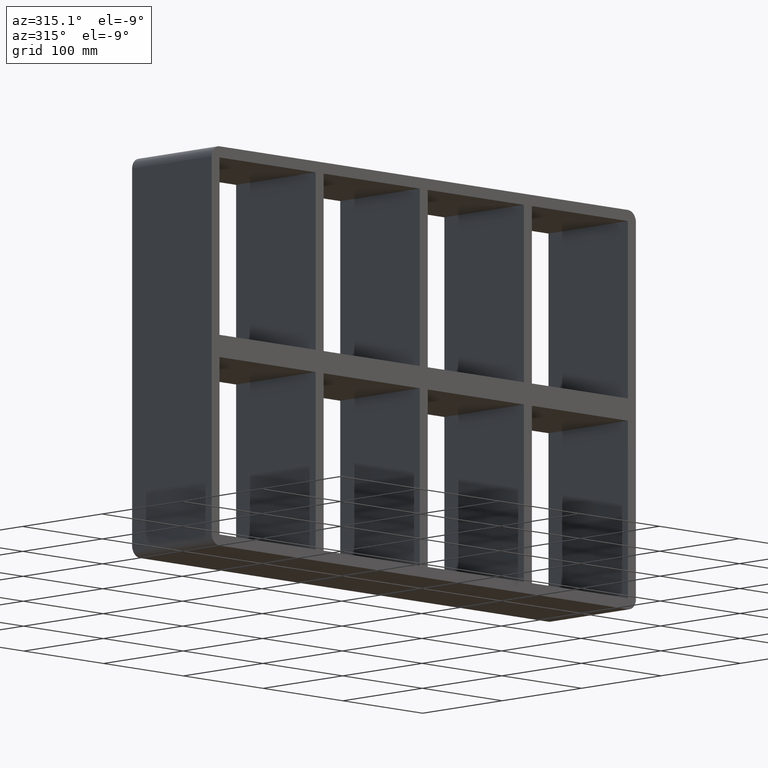
[diagram: clean part render]
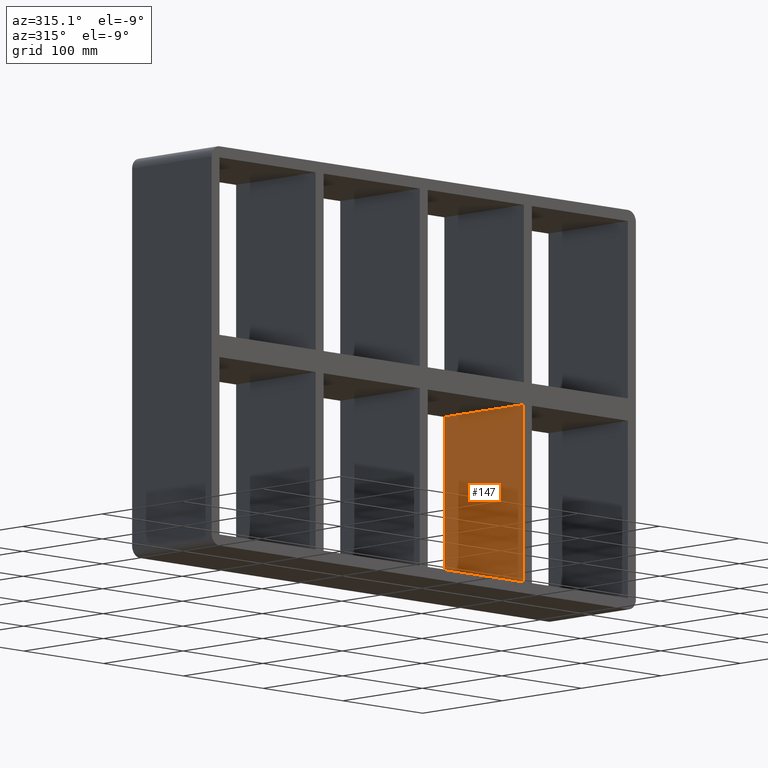
[diagram: same view with one face highlighted and labeled with its STEP entity id]
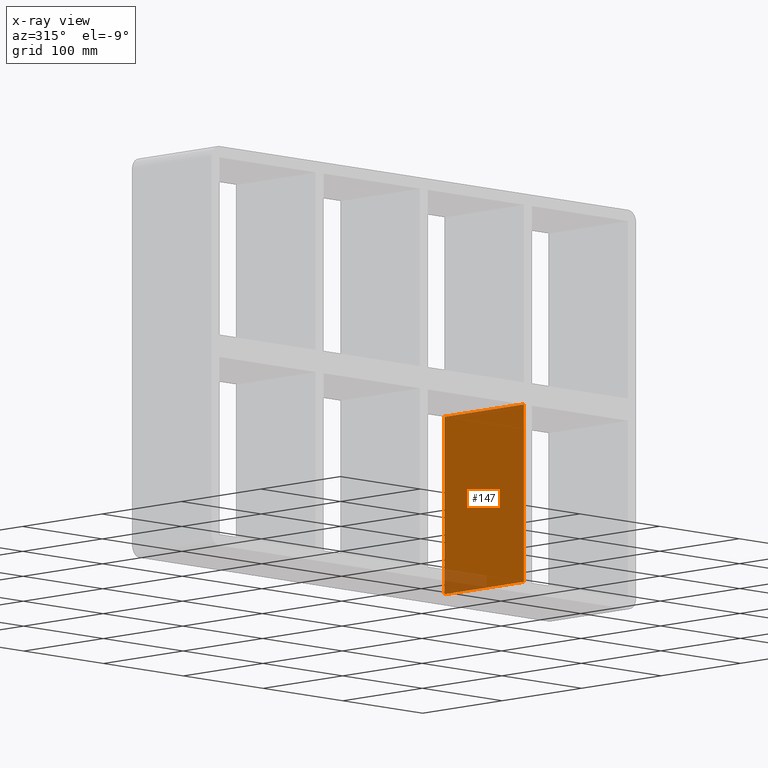
[diagram: x-ray of the same camera — body ghosted, the highlighted face saturated]
A machine part, auxiliary view. The second image highlights one B-rep face of the part: STEP entity #147.
The next image is the same camera in x-ray: the body ghosted, the highlighted face saturated — about 5% of this face is hidden behind the body in this view.
In plain terms, the highlighted planar face has unit normal (-1, 0, 0).
Its self-contained STEP definition (entity closure, byte-faithful):
#108=CARTESIAN_POINT('',(125.49999999999886,-3.0,-169.50000000000003));
#109=DIRECTION('',(-1.0,0.0,0.0));
#110=DIRECTION('',(0.0,0.0,1.0));
#111=AXIS2_PLACEMENT_3D('',#108,#109,#110);
#112=PLANE('',#111);
#113=CARTESIAN_POINT('',(125.49999999999883,97.0,-10.000000000015525));
#114=VERTEX_POINT('',#113);
#115=CARTESIAN_POINT('',(125.49999999999883,-3.0,-10.000000000015525));
#116=VERTEX_POINT('',#115);
#117=CARTESIAN_POINT('',(125.49999999999882,97.0,-10.000000000015534));
#118=DIRECTION('',(0.0,-1.0,0.0));
#119=VECTOR('',#118,100.0);
#120=LINE('',#117,#119);
#121=EDGE_CURVE('',#114,#116,#120,.T.);
#122=ORIENTED_EDGE('',*,*,#121,.F.);
#123=CARTESIAN_POINT('',(125.49999999999886,97.0,-169.50000000000003));
#124=VERTEX_POINT('',#123);
#125=CARTESIAN_POINT('',(125.49999999999886,97.0,-169.50000000000003));
#126=DIRECTION('',(0.0,0.0,1.0));
#127=VECTOR('',#126,159.49999999998451);
#128=LINE('',#125,#127);
#129=EDGE_CURVE('',#124,#114,#128,.T.);
#130=ORIENTED_EDGE('',*,*,#129,.F.);
#131=CARTESIAN_POINT('',(125.49999999999886,-3.0,-169.50000000000003));
#132=VERTEX_POINT('',#131);
#133=CARTESIAN_POINT('',(125.49999999999886,-3.0,-169.50000000000003));
#134=DIRECTION('',(0.0,1.0,0.0));
#135=VECTOR('',#134,100.0);
#136=LINE('',#133,#135);
#137=EDGE_CURVE('',#132,#124,#136,.T.);
#138=ORIENTED_EDGE('',*,*,#137,.F.);
#139=CARTESIAN_POINT('',(125.49999999999886,-3.0,-169.50000000000003));
#140=DIRECTION('',(0.0,0.0,1.0));
#141=VECTOR('',#140,159.49999999998451);
#142=LINE('',#139,#141);
#143=EDGE_CURVE('',#132,#116,#142,.T.);
#144=ORIENTED_EDGE('',*,*,#143,.T.);
#145=EDGE_LOOP('',(#122,#130,#138,#144));
#146=FACE_OUTER_BOUND('',#145,.T.);
#147=ADVANCED_FACE('',(#146),#112,.T.);